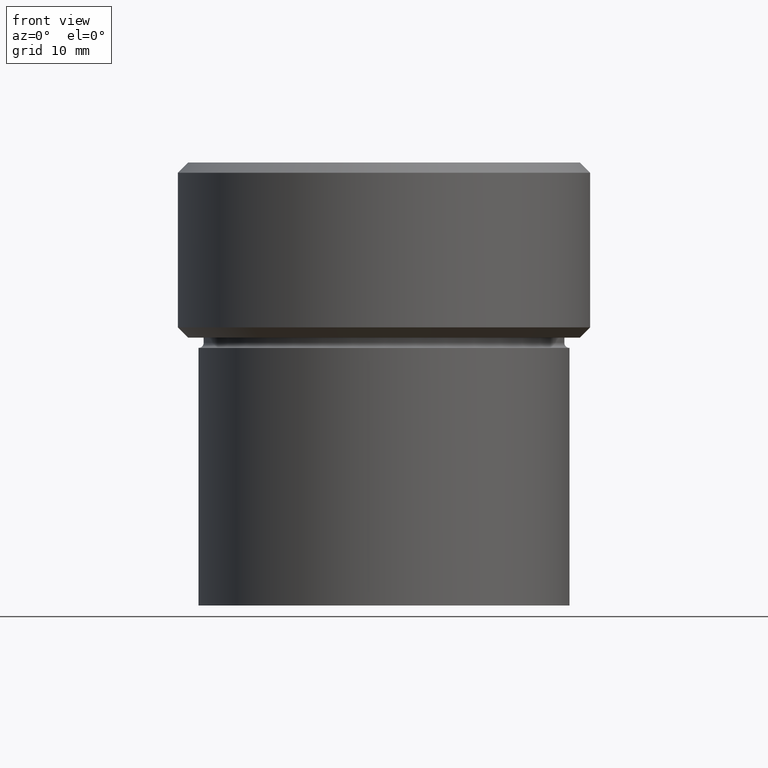
[diagram: clean part render]
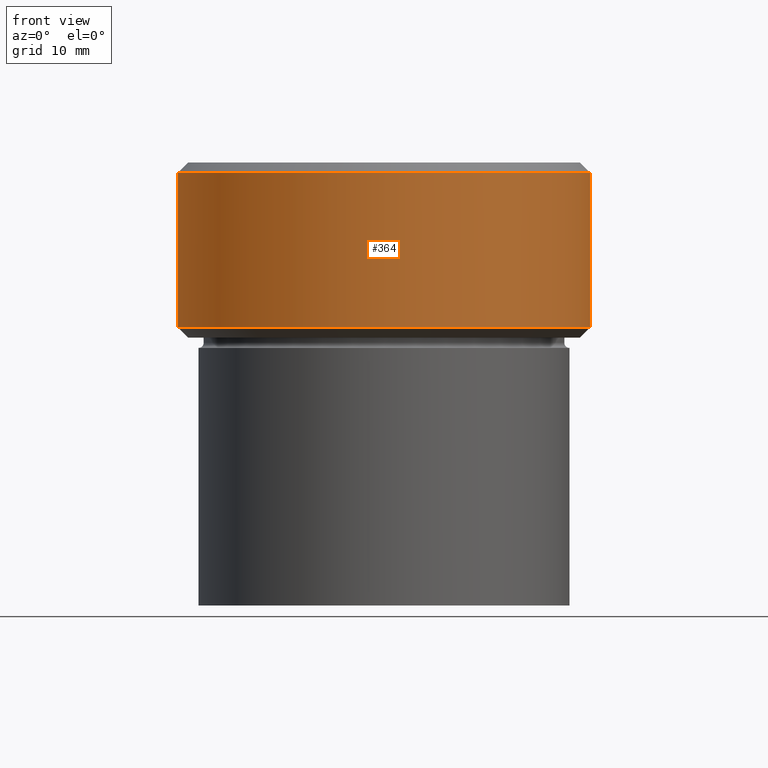
[diagram: same view with one face highlighted and labeled with its STEP entity id]
A machine part, front view. The second image highlights one B-rep face of the part: STEP entity #364.
In plain terms, the highlighted cylindrical surface (partial cylindrical patch) has radius 20 mm, axis along (-0, -0, 1).
Its self-contained STEP definition (entity closure, byte-faithful):
#8 = DIRECTION ( 'NONE',  ( -0.000000000000000000, -0.000000000000000000, 1.000000000000000000 ) ) ;
#12 = AXIS2_PLACEMENT_3D ( 'NONE', #287, #320, #318 ) ;
#56 = VECTOR ( 'NONE', #306, 1000.000000000000000 ) ;
#71 = EDGE_LOOP ( 'NONE', ( #105, #132, #420, #193 ) ) ;
#82 = EDGE_CURVE ( 'NONE', #432, #413, #398, .T. ) ;
#83 = CARTESIAN_POINT ( 'NONE',  ( -20.00000000000000000, 2.449293598294706513E-15, -16.00000000000000355 ) ) ;
#105 = ORIENTED_EDGE ( 'NONE', *, *, #82, .F. ) ;
#109 = CIRCLE ( 'NONE', #474, 20.00000000000000000 ) ;
#114 = CARTESIAN_POINT ( 'NONE',  ( 20.00000000000000000, 0.000000000000000000, 0.000000000000000000 ) ) ;
#132 = ORIENTED_EDGE ( 'NONE', *, *, #332, .T. ) ;
#135 = AXIS2_PLACEMENT_3D ( 'NONE', #254, #292, #301 ) ;
#167 = FACE_OUTER_BOUND ( 'NONE', #71, .T. ) ;
#169 = CYLINDRICAL_SURFACE ( 'NONE', #135, 20.00000000000000000 ) ;
#193 = ORIENTED_EDGE ( 'NONE', *, *, #220, .T. ) ;
#195 = DIRECTION ( 'NONE',  ( -0.000000000000000000, -0.000000000000000000, 1.000000000000000000 ) ) ;
#212 = CARTESIAN_POINT ( 'NONE',  ( -20.00000000000000000, 2.449293598294706513E-15, -0.9999999999999904521 ) ) ;
#220 = EDGE_CURVE ( 'NONE', #352, #413, #240, .T. ) ;
#240 = CIRCLE ( 'NONE', #12, 20.00000000000000000 ) ;
#254 = CARTESIAN_POINT ( 'NONE',  ( 0.000000000000000000, 0.000000000000000000, 0.000000000000000000 ) ) ;
#266 = VERTEX_POINT ( 'NONE', #443 ) ;
#285 = LINE ( 'NONE', #114, #357 ) ;
#287 = CARTESIAN_POINT ( 'NONE',  ( 0.000000000000000000, 0.000000000000000000, -0.9999999999999904521 ) ) ;
#292 = DIRECTION ( 'NONE',  ( -0.000000000000000000, -0.000000000000000000, 1.000000000000000000 ) ) ;
#297 = EDGE_CURVE ( 'NONE', #266, #352, #285, .T. ) ;
#301 = DIRECTION ( 'NONE',  ( 1.000000000000000000, 0.000000000000000000, 0.000000000000000000 ) ) ;
#306 = DIRECTION ( 'NONE',  ( -0.000000000000000000, -0.000000000000000000, 1.000000000000000000 ) ) ;
#318 = DIRECTION ( 'NONE',  ( 1.000000000000000000, 0.000000000000000000, 0.000000000000000000 ) ) ;
#320 = DIRECTION ( 'NONE',  ( 0.000000000000000000, 0.000000000000000000, -1.000000000000000000 ) ) ;
#332 = EDGE_CURVE ( 'NONE', #432, #266, #109, .T. ) ;
#339 = CARTESIAN_POINT ( 'NONE',  ( -20.00000000000000000, 2.449293598294706513E-15, 0.000000000000000000 ) ) ;
#352 = VERTEX_POINT ( 'NONE', #530 ) ;
#357 = VECTOR ( 'NONE', #195, 1000.000000000000000 ) ;
#361 = CARTESIAN_POINT ( 'NONE',  ( 0.000000000000000000, 0.000000000000000000, -16.00000000000000355 ) ) ;
#364 = ADVANCED_FACE ( 'NONE', ( #167 ), #169, .T. ) ;
#382 = DIRECTION ( 'NONE',  ( -1.000000000000000000, 0.000000000000000000, 0.000000000000000000 ) ) ;
#398 = LINE ( 'NONE', #339, #56 ) ;
#413 = VERTEX_POINT ( 'NONE', #212 ) ;
#420 = ORIENTED_EDGE ( 'NONE', *, *, #297, .T. ) ;
#432 = VERTEX_POINT ( 'NONE', #83 ) ;
#443 = CARTESIAN_POINT ( 'NONE',  ( 20.00000000000000000, 0.000000000000000000, -16.00000000000000355 ) ) ;
#474 = AXIS2_PLACEMENT_3D ( 'NONE', #361, #8, #382 ) ;
#530 = CARTESIAN_POINT ( 'NONE',  ( 20.00000000000000000, 0.000000000000000000, -0.9999999999999904521 ) ) ;